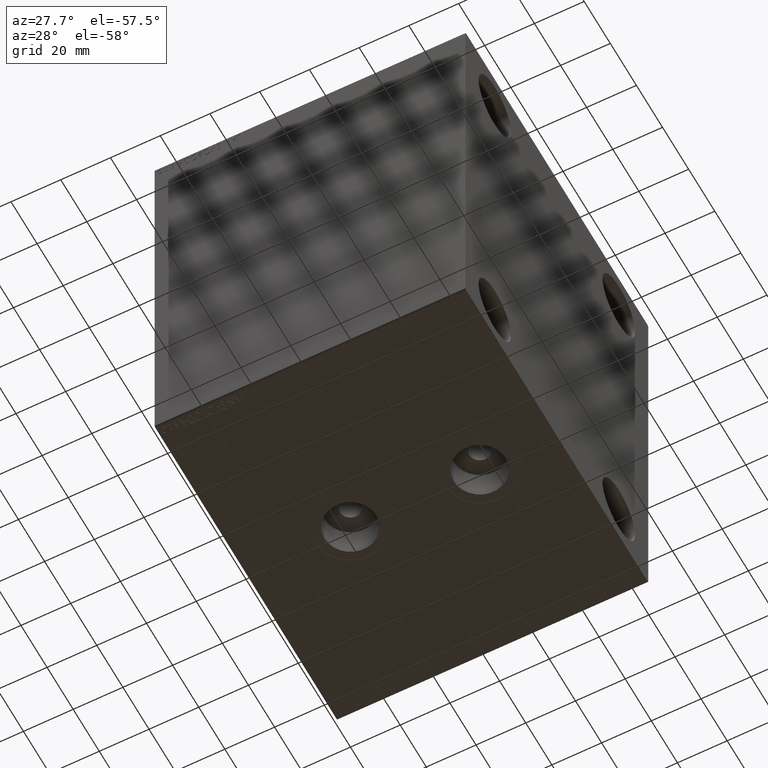
[diagram: clean part render]
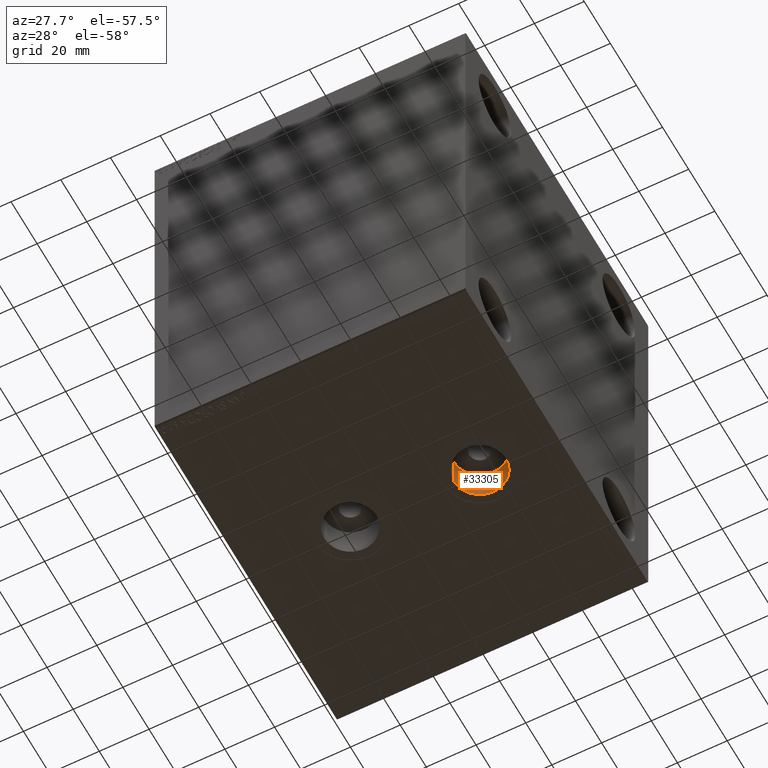
[diagram: same view with one face highlighted and labeled with its STEP entity id]
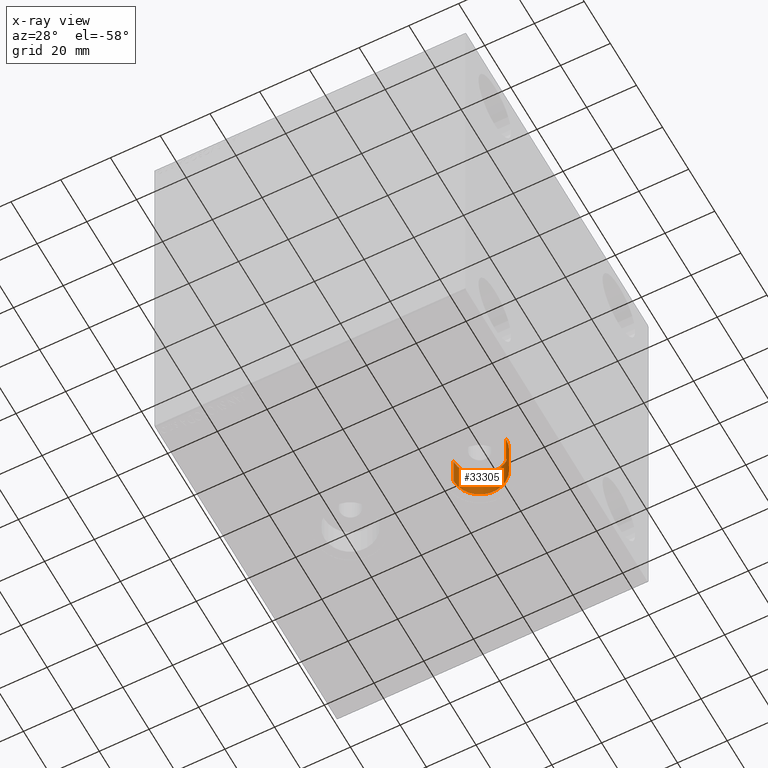
[diagram: x-ray of the same camera — body ghosted, the highlighted face saturated]
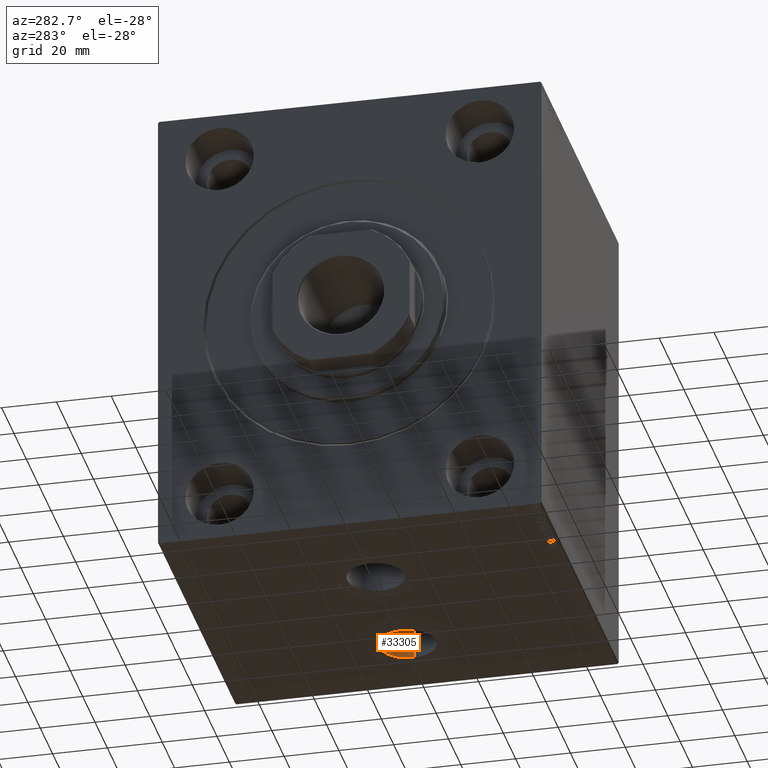
[diagram: same view with one face highlighted and labeled with its STEP entity id]
A machine part, auxiliary view. The second image highlights one B-rep face of the part: STEP entity #33305.
The next image is the same camera in x-ray: the body ghosted, the highlighted face saturated — about 0% of this face is hidden behind the body in this view.
A second angle (auxiliary view) of the same face is appended — the face is thin or edge-on in the first view.
In plain terms, the highlighted cylindrical surface (edge-blend (fillet) strip) has radius 10.48 mm, axis along (-0, -0, -1).
Its self-contained STEP definition (entity closure, byte-faithful):
#84 = DIRECTION ( 'NONE',  ( 0.000000000000000000, 0.000000000000000000, -1.000000000000000000 ) ) ;
#5264 = CARTESIAN_POINT ( 'NONE',  ( 104.4800000000000040, -3.018267527219322587E-15, -84.90000000000003411 ) ) ;
#6454 = ORIENTED_EDGE ( 'NONE', *, *, #40417, .T. ) ;
#6623 = AXIS2_PLACEMENT_3D ( 'NONE', #28116, #10975, #24556 ) ;
#9609 = DIRECTION ( 'NONE',  ( -0.000000000000000000, -0.000000000000000000, -1.000000000000000000 ) ) ;
#10975 = DIRECTION ( 'NONE',  ( -0.000000000000000000, -0.000000000000000000, -1.000000000000000000 ) ) ;
#12360 = LINE ( 'NONE', #32393, #31125 ) ;
#12942 = CARTESIAN_POINT ( 'NONE',  ( 83.51999999999999602, -4.301697372725748075E-15, -72.00000000000004263 ) ) ;
#14575 = VECTOR ( 'NONE', #9609, 1000.000000000000000 ) ;
#15119 = EDGE_CURVE ( 'NONE', #34143, #40041, #12360, .T. ) ;
#15935 = DIRECTION ( 'NONE',  ( -1.000000000000000000, 0.000000000000000000, 0.000000000000000000 ) ) ;
#17431 = CYLINDRICAL_SURFACE ( 'NONE', #6623, 10.48000000000000398 ) ;
#17890 = CIRCLE ( 'NONE', #23591, 10.48000000000000398 ) ;
#19035 = DIRECTION ( 'NONE',  ( -0.000000000000000000, -0.000000000000000000, -1.000000000000000000 ) ) ;
#19276 = CARTESIAN_POINT ( 'NONE',  ( 94.00000000000000000, -4.301697372725748075E-15, -72.00000000000004263 ) ) ;
#19589 = VERTEX_POINT ( 'NONE', #23149 ) ;
#20309 = ORIENTED_EDGE ( 'NONE', *, *, #25404, .F. ) ;
#20991 = FACE_OUTER_BOUND ( 'NONE', #42152, .T. ) ;
#21329 = VERTEX_POINT ( 'NONE', #28743 ) ;
#23149 = CARTESIAN_POINT ( 'NONE',  ( 83.51999999999999602, -4.301697372725748075E-15, -84.90000000000003411 ) ) ;
#23591 = AXIS2_PLACEMENT_3D ( 'NONE', #19276, #29959, #15935 ) ;
#23827 = CIRCLE ( 'NONE', #42268, 10.48000000000000398 ) ;
#24556 = DIRECTION ( 'NONE',  ( -1.000000000000000000, 0.000000000000000000, 0.000000000000000000 ) ) ;
#25404 = EDGE_CURVE ( 'NONE', #21329, #34143, #17890, .T. ) ;
#28116 = CARTESIAN_POINT ( 'NONE',  ( 94.00000000000000000, -4.301697372725748075E-15, -72.00000000000004263 ) ) ;
#28743 = CARTESIAN_POINT ( 'NONE',  ( 83.51999999999999602, -4.301697372725748075E-15, -72.00000000000004263 ) ) ;
#29959 = DIRECTION ( 'NONE',  ( 0.000000000000000000, 0.000000000000000000, -1.000000000000000000 ) ) ;
#30351 = ORIENTED_EDGE ( 'NONE', *, *, #15119, .F. ) ;
#30563 = CARTESIAN_POINT ( 'NONE',  ( 94.00000000000000000, -4.301697372725748075E-15, -84.90000000000003411 ) ) ;
#30795 = CARTESIAN_POINT ( 'NONE',  ( 104.4800000000000040, -3.018267527219322587E-15, -72.00000000000004263 ) ) ;
#31125 = VECTOR ( 'NONE', #19035, 1000.000000000000000 ) ;
#31222 = DIRECTION ( 'NONE',  ( -1.000000000000000000, 0.000000000000000000, 0.000000000000000000 ) ) ;
#32393 = CARTESIAN_POINT ( 'NONE',  ( 104.4800000000000040, -3.018267527219322587E-15, -72.00000000000004263 ) ) ;
#33305 = ADVANCED_FACE ( 'NONE', ( #20991 ), #17431, .F. ) ;
#34143 = VERTEX_POINT ( 'NONE', #30795 ) ;
#36734 = ORIENTED_EDGE ( 'NONE', *, *, #41417, .T. ) ;
#40041 = VERTEX_POINT ( 'NONE', #5264 ) ;
#40417 = EDGE_CURVE ( 'NONE', #19589, #40041, #23827, .T. ) ;
#41417 = EDGE_CURVE ( 'NONE', #21329, #19589, #43171, .T. ) ;
#42152 = EDGE_LOOP ( 'NONE', ( #30351, #20309, #36734, #6454 ) ) ;
#42268 = AXIS2_PLACEMENT_3D ( 'NONE', #30563, #84, #31222 ) ;
#43171 = LINE ( 'NONE', #12942, #14575 ) ;